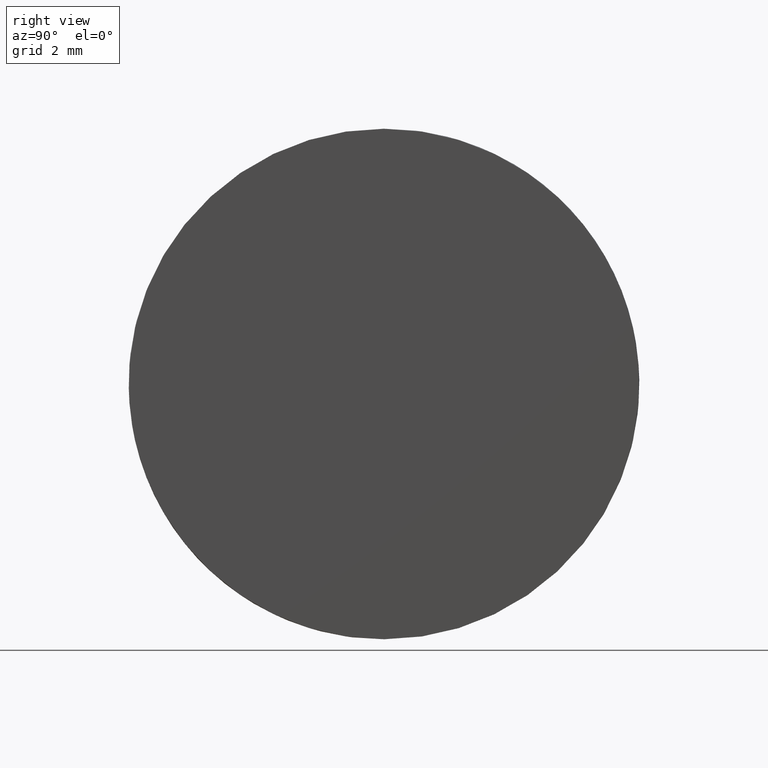
[diagram: clean part render]
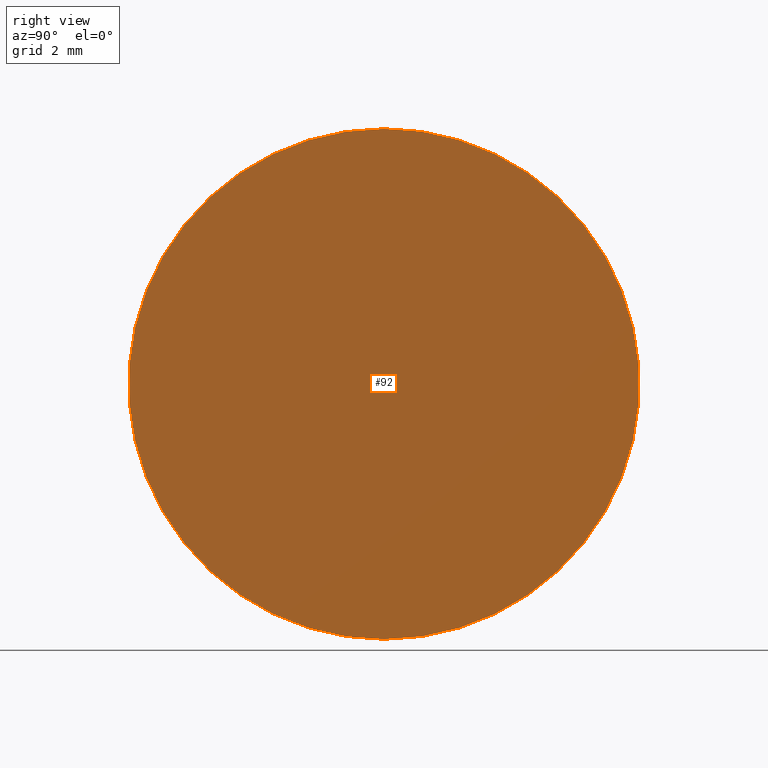
[diagram: same view with one face highlighted and labeled with its STEP entity id]
A machine part, right view. The second image highlights one B-rep face of the part: STEP entity #92.
In plain terms, the highlighted planar face has unit normal (1, 0, -0).
Its self-contained STEP definition (entity closure, byte-faithful):
#10 = PLANE ( 'NONE',  #221 ) ;
#12 = DIRECTION ( 'NONE',  ( 1.000000000000000000, 0.0000000000000000000, -2.497546408665961600E-016 ) ) ;
#21 = CARTESIAN_POINT ( 'NONE',  ( -15.70479566514873900, 6.250000000000000900, 6.249999999999999100 ) ) ;
#29 = VERTEX_POINT ( 'NONE', #107 ) ;
#48 = EDGE_CURVE ( 'NONE', #29, #124, #94, .T. ) ;
#64 = CARTESIAN_POINT ( 'NONE',  ( -15.70479566514873900, 12.50000000000000000, -6.249999999999993800 ) ) ;
#70 = DIRECTION ( 'NONE',  ( -2.775557561562893300E-016, 0.0000000000000000000, -1.000000000000000000 ) ) ;
#72 = CARTESIAN_POINT ( 'NONE',  ( -15.70479566514873900, 6.250000000000000000, -8.452139918100487000E-016 ) ) ;
#81 = CARTESIAN_POINT ( 'NONE',  ( -15.70479566514873900, 6.250000000000000000, -8.452139918100487000E-016 ) ) ;
#85 = EDGE_LOOP ( 'NONE', ( #185, #132 ) ) ;
#92 = ADVANCED_FACE ( 'NONE', ( #168 ), #10, .T. ) ;
#94 = CIRCLE ( 'NONE', #164, 6.250000000000000000 ) ;
#107 = CARTESIAN_POINT ( 'NONE',  ( -15.70479566514873900, 6.250000000000000000, -6.250000000000000900 ) ) ;
#110 = CIRCLE ( 'NONE', #176, 6.250000000000000000 ) ;
#124 = VERTEX_POINT ( 'NONE', #21 ) ;
#132 = ORIENTED_EDGE ( 'NONE', *, *, #169, .T. ) ;
#149 = DIRECTION ( 'NONE',  ( 1.000000000000000000, 0.0000000000000000000, -2.775557561562893300E-016 ) ) ;
#150 = DIRECTION ( 'NONE',  ( 0.0000000000000000000, 0.0000000000000000000, -1.000000000000000000 ) ) ;
#155 = DIRECTION ( 'NONE',  ( 0.0000000000000000000, 0.0000000000000000000, -1.000000000000000000 ) ) ;
#162 = DIRECTION ( 'NONE',  ( 1.000000000000000000, 0.0000000000000000000, -2.497546408665961600E-016 ) ) ;
#164 = AXIS2_PLACEMENT_3D ( 'NONE', #72, #12, #155 ) ;
#168 = FACE_OUTER_BOUND ( 'NONE', #85, .T. ) ;
#169 = EDGE_CURVE ( 'NONE', #124, #29, #110, .T. ) ;
#176 = AXIS2_PLACEMENT_3D ( 'NONE', #81, #162, #150 ) ;
#185 = ORIENTED_EDGE ( 'NONE', *, *, #48, .T. ) ;
#221 = AXIS2_PLACEMENT_3D ( 'NONE', #64, #149, #70 ) ;